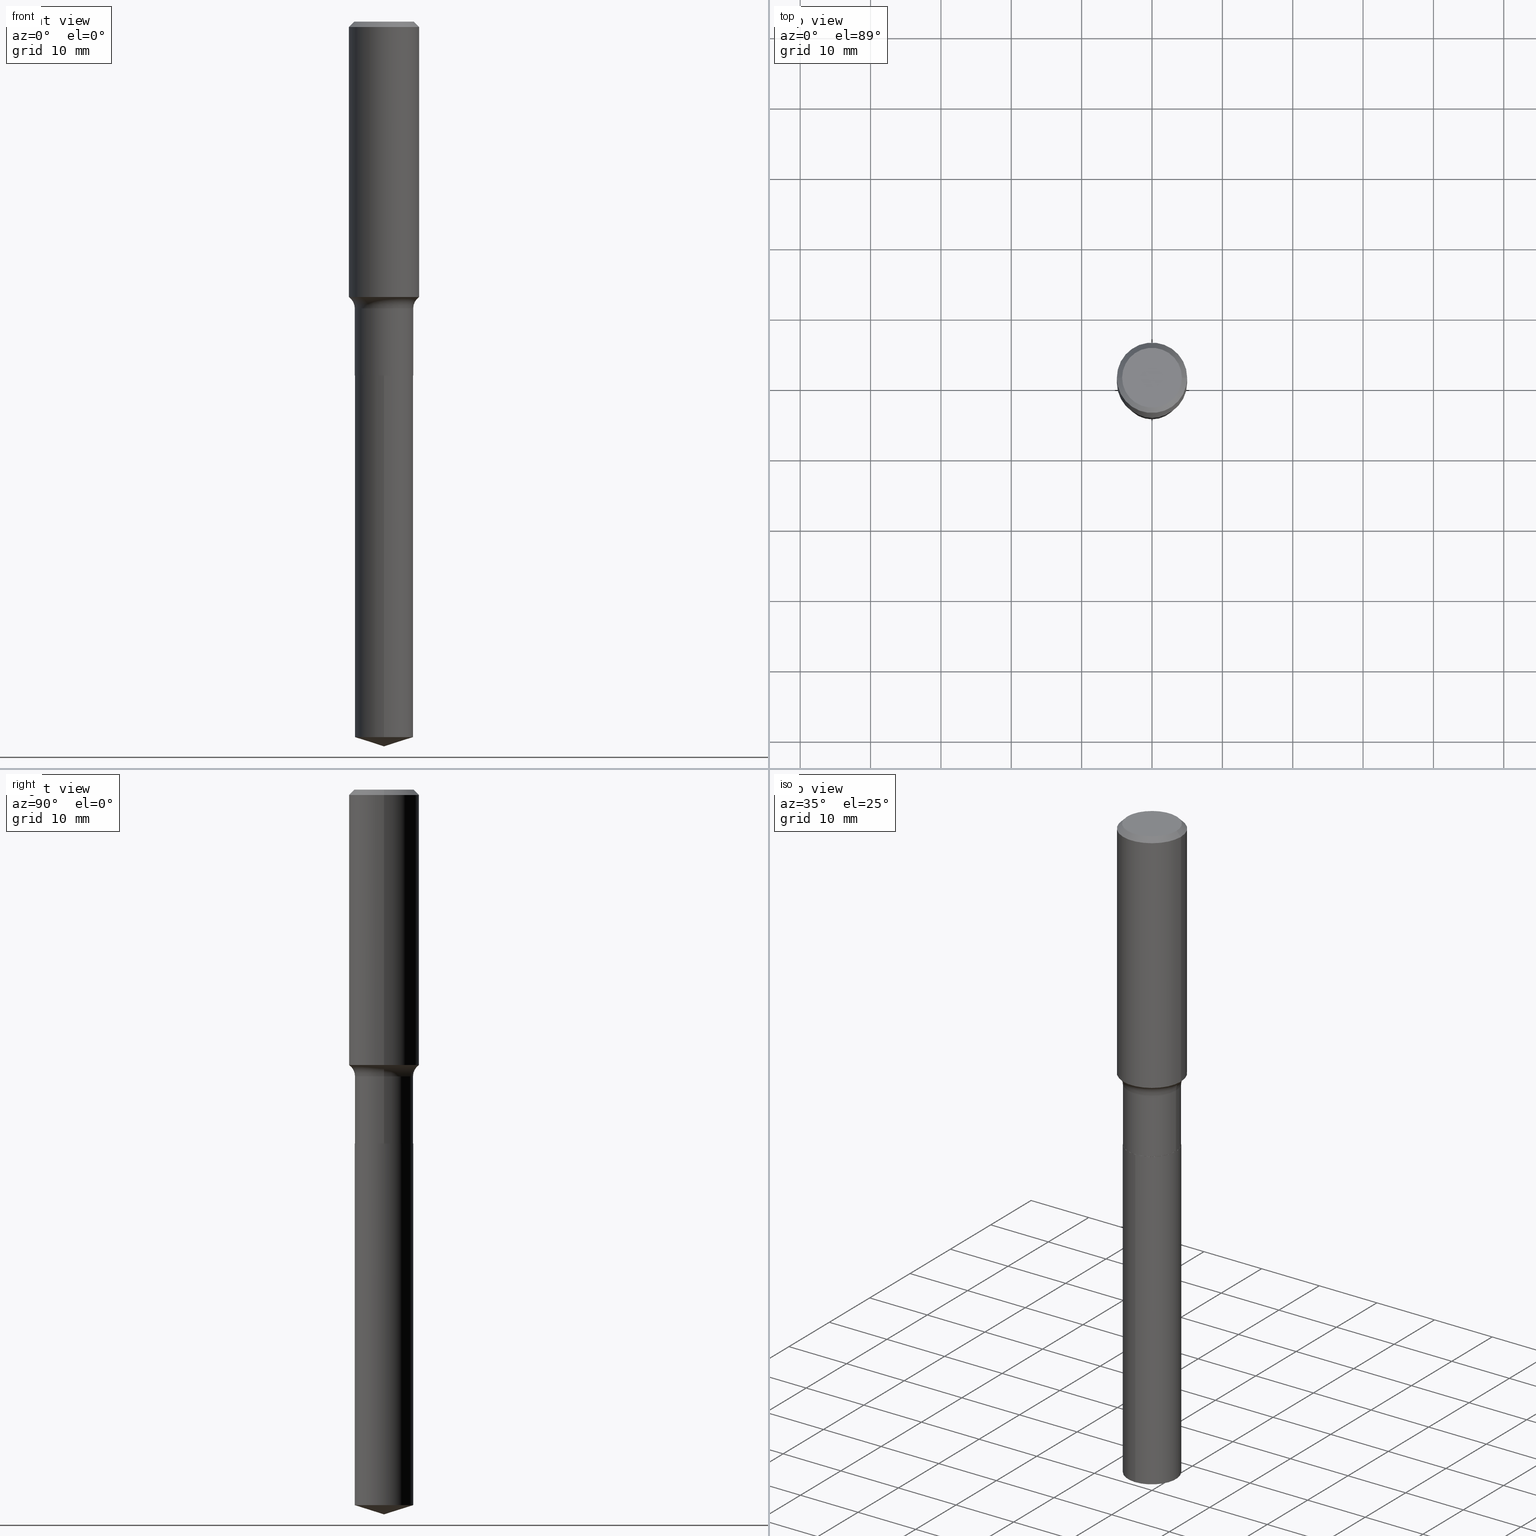
[diagram: canonical four-view strip — front | top / right | iso, engineering-drawing reading convention]
A machine part, canonical four-view strip (front | top / right | iso — engineering-drawing reading convention). The complete STEP part file that produces these views, byte-faithful:
ISO-10303-21;
HEADER;
FILE_DESCRIPTION (( 'STEP AP203' ),
    '1' );
FILE_NAME ('64156.STEP',
    '2024-04-19T15:23:11',
    ( '' ),
    ( '' ),
    'SwSTEP 2.0',
    'SolidWorks 2023',
    '' );
FILE_SCHEMA (( 'CONFIG_CONTROL_DESIGN' ));
ENDSEC;

DATA;
#1 = SHAPE_DEFINITION_REPRESENTATION ( #392, #253 ) ;
#2 = DIRECTION ( 'NONE',  ( -2.445468806185136597E-29, 3.491481338843145583E-15, 1.000000000000000000 ) ) ;
#3 = DIRECTION ( 'NONE',  ( -1.000000000000000000, 7.105427357601001859E-15, 0.000000000000000000 ) ) ;
#4 = COORDINATED_UNIVERSAL_TIME_OFFSET ( 5, 0, .BEHIND. ) ;
#5 = EDGE_CURVE ( 'NONE', #11, #457, #288, .T. ) ;
#6 = CIRCLE ( 'NONE', #150, 0.1634000000000000175 ) ;
#7 =( NAMED_UNIT ( * ) SI_UNIT ( $, .STERADIAN. ) SOLID_ANGLE_UNIT ( ) );
#8 = CALENDAR_DATE ( 2024, 19, 4 ) ;
#9 = CARTESIAN_POINT ( 'NONE',  ( -0.1968500000000000527, -1.342112519284219140E-15, -0.02952750000000022371 ) ) ;
#10 = VERTEX_POINT ( 'NONE', #223 ) ;
#11 = VERTEX_POINT ( 'NONE', #368 ) ;
#12 = CARTESIAN_POINT ( 'NONE',  ( 3.767181709122995344E-29, -5.378537074023262958E-15, -1.540474243464055704 ) ) ;
#13 = VECTOR ( 'NONE', #336, 39.37007874015748143 ) ;
#14 = CONICAL_SURFACE ( 'NONE', #322, 0.1968500000000000527, 0.7853981633974453924 ) ;
#15 = ORIENTED_EDGE ( 'NONE', *, *, #323, .F. ) ;
#16 = ORIENTED_EDGE ( 'NONE', *, *, #124, .T. ) ;
#17 = APPROVAL_PERSON_ORGANIZATION ( #53, #353, #143 ) ;
#18 = CC_DESIGN_PERSON_AND_ORGANIZATION_ASSIGNMENT ( #186, #134, ( #425 ) ) ;
#19 = DIRECTION ( 'NONE',  ( -2.445551837428918341E-29, 3.491362433376205116E-15, 1.000000000000000000 ) ) ;
#20 = ORIENTED_EDGE ( 'NONE', *, *, #450, .T. ) ;
#21 = CALENDAR_DATE ( 2024, 19, 4 ) ;
#22 = CARTESIAN_POINT ( 'NONE',  ( 0.1628999999999999893, -8.051705115506173515E-15, -1.980299999999999949 ) ) ;
#23 = ORIENTED_EDGE ( 'NONE', *, *, #470, .T. ) ;
#24 = CC_DESIGN_DATE_AND_TIME_ASSIGNMENT ( #391, #358, ( #74 ) ) ;
#25 = DIRECTION ( 'NONE',  ( -2.445468806185136597E-29, 3.491481338843145583E-15, 1.000000000000000000 ) ) ;
#26 = AXIS2_PLACEMENT_3D ( 'NONE', #156, #240, #312 ) ;
#27 = DIRECTION ( 'NONE',  ( -2.445551837428918341E-29, 3.491362433376205116E-15, 1.000000000000000000 ) ) ;
#28 = DIRECTION ( 'NONE',  ( 6.776566513254257349E-15, 0.9537169507482289310, 0.3007057995042667353 ) ) ;
#29 = CARTESIAN_POINT ( 'NONE',  ( -0.1968500000000001915, -3.979833698679504381E-15, -1.540474243464055704 ) ) ;
#30 = VECTOR ( 'NONE', #200, 39.37007874015748143 ) ;
#31 = DIRECTION ( 'NONE',  ( -2.445468806185136597E-29, 3.491481338843145583E-15, 1.000000000000000000 ) ) ;
#32 = CARTESIAN_POINT ( 'NONE',  ( 7.220858017463217368E-31, -1.030947152326917719E-16, -0.02952750000000022371 ) ) ;
#33 = DIRECTION ( 'NONE',  ( 1.000000000000000000, -6.982962677686266711E-15, 4.876176775795935793E-29 ) ) ;
#34 = EDGE_CURVE ( 'NONE', #107, #441, #80, .T. ) ;
#35 = MANIFOLD_SOLID_BREP ( 'Body-Move/Copy2[1]', #159 ) ;
#36 = ADVANCED_FACE ( 'NONE', ( #257 ), #400, .T. ) ;
#37 = EDGE_CURVE ( 'NONE', #10, #109, #136, .T. ) ;
#38 = COORDINATED_UNIVERSAL_TIME_OFFSET ( 5, 0, .BEHIND. ) ;
#39 = CARTESIAN_POINT ( 'NONE',  ( 9.916628402413884998E-29, -1.415829474057621466E-14, -4.055100000000000371 ) ) ;
#40 = CARTESIAN_POINT ( 'NONE',  ( 0.000000000000000000, 0.000000000000000000, 0.000000000000000000 ) ) ;
#41 = EDGE_LOOP ( 'NONE', ( #20, #410, #332, #185 ) ) ;
#42 = AXIS2_PLACEMENT_3D ( 'NONE', #488, #152, #242 ) ;
#43 = ORIENTED_EDGE ( 'NONE', *, *, #188, .T. ) ;
#44 = DIRECTION ( 'NONE',  ( -2.445468806185136597E-29, 3.491481338843145583E-15, 1.000000000000000000 ) ) ;
#45 = CYLINDRICAL_SURFACE ( 'NONE', #484, 0.1633999999999999897 ) ;
#46 = CC_DESIGN_APPROVAL ( #345, ( #74 ) ) ;
#47 = EDGE_LOOP ( 'NONE', ( #158, #298, #402, #226 ) ) ;
#48 = DESIGN_CONTEXT ( 'detailed design', #184, 'design' ) ;
#49 = DIRECTION ( 'NONE',  ( 7.105427357601001859E-15, 1.000000000000000000, -3.491481338843145583E-15 ) ) ;
#50 = CALENDAR_DATE ( 2024, 19, 4 ) ;
#51 = ADVANCED_FACE ( 'NONE', ( #75 ), #449, .T. ) ;
#52 = CONICAL_SURFACE ( 'NONE', #417, 0.1628999999999999893, 0.7853981633975849475 ) ;
#53 = PERSON_AND_ORGANIZATION ( #275, #393 ) ;
#54 = ORIENTED_EDGE ( 'NONE', *, *, #470, .F. ) ;
#55 = ORIENTED_EDGE ( 'NONE', *, *, #359, .T. ) ;
#56 = AXIS2_PLACEMENT_3D ( 'NONE', #374, #481, #148 ) ;
#57 = CARTESIAN_POINT ( 'NONE',  ( -8.636477557352738161E-28, 1.232971546403689946E-13, 35.31497874015747840 ) ) ;
#58 = ORIENTED_EDGE ( 'NONE', *, *, #323, .T. ) ;
#59 = ORIENTED_EDGE ( 'NONE', *, *, #390, .T. ) ;
#60 = AXIS2_PLACEMENT_3D ( 'NONE', #464, #405, #430 ) ;
#61 = DIRECTION ( 'NONE',  ( -2.445468806185136597E-29, 3.491481338843145583E-15, 1.000000000000000000 ) ) ;
#62 = ADVANCED_FACE ( 'NONE', ( #380 ), #264, .F. ) ;
#63 = ORIENTED_EDGE ( 'NONE', *, *, #172, .F. ) ;
#64 = VERTEX_POINT ( 'NONE', #29 ) ;
#65 = ORIENTED_EDGE ( 'NONE', *, *, #172, .T. ) ;
#66 = DIRECTION ( 'NONE',  ( 2.445468806185136597E-29, -3.491481338843145583E-15, -1.000000000000000000 ) ) ;
#67 = ORIENTED_EDGE ( 'NONE', *, *, #359, .F. ) ;
#68 = DIRECTION ( 'NONE',  ( 1.000000000000000000, -6.982962677686261977E-15, 0.000000000000000000 ) ) ;
#69 = DIRECTION ( 'NONE',  ( -2.445468806185136597E-29, 3.491481338843145583E-15, 1.000000000000000000 ) ) ;
#70 = CIRCLE ( 'NONE', #115, 0.1968500000000000527 ) ;
#71 = DIMENSIONAL_EXPONENTS ( 1.000000000000000000, 0.000000000000000000, 0.000000000000000000, 0.000000000000000000, 0.000000000000000000, 0.000000000000000000, 0.000000000000000000 ) ;
#72 = DIRECTION ( 'NONE',  ( 1.000000000000000000, -6.982962677686268288E-15, 0.000000000000000000 ) ) ;
#73 = LINE ( 'NONE', #39, #396 ) ;
#74 = SECURITY_CLASSIFICATION ( '', '', #318 ) ;
#75 = FACE_OUTER_BOUND ( 'NONE', #327, .T. ) ;
#76 = DIRECTION ( 'NONE',  ( -2.445468806185136597E-29, 3.491481338843145583E-15, 1.000000000000000000 ) ) ;
#77 = CARTESIAN_POINT ( 'NONE',  ( 9.790798433578370854E-29, -1.397818490061600352E-14, -4.003580177897174686 ) ) ;
#78 = CARTESIAN_POINT ( 'NONE',  ( 0.1968500000000000527, -1.453583746094018101E-15, -0.02952750000000022371 ) ) ;
#79 = CARTESIAN_POINT ( 'NONE',  ( 0.1634000000000000175, -8.053450856175595808E-15, -1.979800000000000004 ) ) ;
#80 = CIRCLE ( 'NONE', #199, 0.1673224999999999851 ) ;
#81 = CARTESIAN_POINT ( 'NONE',  ( 3.923754699524052199E-29, -5.602081808173827411E-15, -1.604500000000000037 ) ) ;
#82 = CYLINDRICAL_SURFACE ( 'NONE', #277, 0.1633999999999999897 ) ;
#83 = CYLINDRICAL_SURFACE ( 'NONE', #423, 0.1633999999999999897 ) ;
#84 = ORIENTED_EDGE ( 'NONE', *, *, #124, .F. ) ;
#85 = LINE ( 'NONE', #125, #297 ) ;
#86 = PERSON_AND_ORGANIZATION_ROLE ( 'classification_officer' ) ;
#87 = EDGE_CURVE ( 'NONE', #364, #457, #6, .T. ) ;
#88 = AXIS2_PLACEMENT_3D ( 'NONE', #440, #434, #68 ) ;
#89 = CARTESIAN_POINT ( 'NONE',  ( -1.141016101533887238E-15, -0.1634000000000069008, -1.980299999999999283 ) ) ;
#90 = EDGE_LOOP ( 'NONE', ( #15, #23, #269, #325 ) ) ;
#91 = EDGE_CURVE ( 'NONE', #183, #103, #70, .T. ) ;
#92 = PERSON_AND_ORGANIZATION ( #275, #393 ) ;
#93 = AXIS2_PLACEMENT_3D ( 'NONE', #12, #461, #428 ) ;
#94 = VECTOR ( 'NONE', #263, 39.37007874015748143 ) ;
#95 = ORIENTED_EDGE ( 'NONE', *, *, #37, .F. ) ;
#96 = EDGE_CURVE ( 'NONE', #313, #10, #73, .T. ) ;
#97 = DIRECTION ( 'NONE',  ( 1.000000000000000000, -6.982962677686267499E-15, 4.876294436782262290E-29 ) ) ;
#98 = VECTOR ( 'NONE', #466, 39.37007874015748143 ) ;
#99 = FACE_OUTER_BOUND ( 'NONE', #90, .T. ) ;
#100 = CARTESIAN_POINT ( 'NONE',  ( 4.842761876888425335E-29, -6.914180495311080769E-15, -1.980299999999999949 ) ) ;
#101 = FACE_OUTER_BOUND ( 'NONE', #307, .T. ) ;
#102 = DIRECTION ( 'NONE',  ( -0.7071067811865454633, 2.468850131082235367E-15, -0.7071067811865495711 ) ) ;
#103 = VERTEX_POINT ( 'NONE', #311 ) ;
#104 = AXIS2_PLACEMENT_3D ( 'NONE', #187, #108, #72 ) ;
#105 = CARTESIAN_POINT ( 'NONE',  ( 4.842761876888425335E-29, -6.914180495311080769E-15, -1.980299999999999949 ) ) ;
#106 = DIRECTION ( 'NONE',  ( -6.982962677686265133E-15, -1.000000000000000000, 3.500519750498698121E-15 ) ) ;
#107 = VERTEX_POINT ( 'NONE', #315 ) ;
#108 = DIRECTION ( 'NONE',  ( -2.445468806185136597E-29, 3.491481338843145583E-15, 1.000000000000000000 ) ) ;
#109 = VERTEX_POINT ( 'NONE', #89 ) ;
#110 = CIRCLE ( 'NONE', #463, 0.1628999999999999893 ) ;
#111 = EDGE_CURVE ( 'NONE', #373, #335, #340, .T. ) ;
#112 = CIRCLE ( 'NONE', #371, 0.1633999999999999897 ) ;
#113 = ORIENTED_EDGE ( 'NONE', *, *, #91, .T. ) ;
#114 = DIRECTION ( 'NONE',  ( -2.438088387897960049E-29, 3.491481338843145188E-15, 1.000000000000000000 ) ) ;
#115 = AXIS2_PLACEMENT_3D ( 'NONE', #490, #2, #343 ) ;
#116 = CARTESIAN_POINT ( 'NONE',  ( 4.842761876888425335E-29, -6.914180495311080769E-15, -1.980299999999999949 ) ) ;
#117 = DIRECTION ( 'NONE',  ( -2.445551837428918341E-29, 3.491362433376205116E-15, 1.000000000000000000 ) ) ;
#118 = LINE ( 'NONE', #236, #30 ) ;
#119 = DIRECTION ( 'NONE',  ( -2.445468806185136597E-29, 3.491481338843145583E-15, 1.000000000000000000 ) ) ;
#120 = AXIS2_PLACEMENT_3D ( 'NONE', #81, #267, #239 ) ;
#121 = CARTESIAN_POINT ( 'NONE',  ( 7.220858017463217368E-31, -1.030947152326917719E-16, -0.02952750000000022371 ) ) ;
#122 = LOCAL_TIME ( 11, 23, 11.00000000000000000, #293 ) ;
#123 = DIRECTION ( 'NONE',  ( -2.445468806185136597E-29, 3.491481338843145583E-15, 1.000000000000000000 ) ) ;
#124 = EDGE_CURVE ( 'NONE', #313, #408, #273, .T. ) ;
#125 = CARTESIAN_POINT ( 'NONE',  ( 0.1628999999999999893, -8.051705115506173515E-15, -1.980299999999999949 ) ) ;
#126 = CARTESIAN_POINT ( 'NONE',  ( -0.1634000000000000175, -5.096231451175739708E-15, -1.979800000000000004 ) ) ;
#127 = ORIENTED_EDGE ( 'NONE', *, *, #196, .T. ) ;
#128 = DATE_AND_TIME ( #50, #409 ) ;
#129 = EDGE_CURVE ( 'NONE', #10, #408, #222, .T. ) ;
#130 = APPLICATION_PROTOCOL_DEFINITION ( 'international standard', 'config_control_design', 1994, #175 ) ;
#131 = ORIENTED_EDGE ( 'NONE', *, *, #350, .F. ) ;
#132 = EDGE_LOOP ( 'NONE', ( #419, #379, #472, #241 ) ) ;
#133 = EDGE_CURVE ( 'NONE', #285, #364, #85, .T. ) ;
#134 = PERSON_AND_ORGANIZATION_ROLE ( 'creator' ) ;
#135 = CARTESIAN_POINT ( 'NONE',  ( 0.1968500000000001915, -6.753133277125806144E-15, -1.540474243464055704 ) ) ;
#136 = LINE ( 'NONE', #167, #271 ) ;
#137 = ORIENTED_EDGE ( 'NONE', *, *, #254, .T. ) ;
#138 = DIRECTION ( 'NONE',  ( 1.000000000000000000, 0.000000000000000000, 0.000000000000000000 ) ) ;
#139 = CARTESIAN_POINT ( 'NONE',  ( 4.841539142485333655E-29, -6.912434754641659266E-15, -1.979800000000000004 ) ) ;
#140 = CIRCLE ( 'NONE', #60, 0.1633999999999999897 ) ;
#141 = DIRECTION ( 'NONE',  ( -1.000000000000000000, 6.982962677686266711E-15, 0.000000000000000000 ) ) ;
#142 = ORIENTED_EDGE ( 'NONE', *, *, #324, .T. ) ;
#143 = APPROVAL_ROLE ( '' ) ;
#144 = FACE_OUTER_BOUND ( 'NONE', #287, .T. ) ;
#145 = APPROVAL_PERSON_ORGANIZATION ( #281, #345, #247 ) ;
#146 = ORIENTED_EDGE ( 'NONE', *, *, #390, .F. ) ;
#147 = AXIS2_PLACEMENT_3D ( 'NONE', #399, #474, #138 ) ;
#148 = DIRECTION ( 'NONE',  ( 6.982962677686265922E-15, 1.000000000000000000, -3.491362433376205116E-15 ) ) ;
#149 = CARTESIAN_POINT ( 'NONE',  ( 1.161026830232051948E-15, 0.1633999999999931063, -1.980300000000000393 ) ) ;
#150 = AXIS2_PLACEMENT_3D ( 'NONE', #235, #31, #383 ) ;
#151 = ADVANCED_FACE ( 'NONE', ( #243 ), #83, .T. ) ;
#152 = DIRECTION ( 'NONE',  ( -2.445551837428918341E-29, 3.491362433376205116E-15, 1.000000000000000000 ) ) ;
#153 = ADVANCED_FACE ( 'NONE', ( #389 ), #45, .T. ) ;
#154 = CC_DESIGN_PERSON_AND_ORGANIZATION_ASSIGNMENT ( #462, #215, ( #169 ) ) ;
#155 = CIRCLE ( 'NONE', #319, 0.07799999999999995826 ) ;
#156 = CARTESIAN_POINT ( 'NONE',  ( -8.636477557352738161E-28, 1.232971546403689946E-13, 35.31497874015747840 ) ) ;
#157 = CARTESIAN_POINT ( 'NONE',  ( 9.916960139615408535E-29, -1.415782380358385216E-14, -4.055100000000000371 ) ) ;
#158 = ORIENTED_EDGE ( 'NONE', *, *, #87, .T. ) ;
#159 = CLOSED_SHELL ( 'NONE', ( #151, #437, #370, #36, #301 ) ) ;
#160 = ADVANCED_FACE ( 'NONE', ( #377 ), #52, .T. ) ;
#161 = EDGE_CURVE ( 'NONE', #457, #373, #118, .T. ) ;
#162 = DIRECTION ( 'NONE',  ( -2.445551837428918341E-29, 3.491362433376205116E-15, 1.000000000000000000 ) ) ;
#163 =( LENGTH_UNIT ( ) NAMED_UNIT ( * ) SI_UNIT ( $, .METRE. ) );
#164 = AXIS2_PLACEMENT_3D ( 'NONE', #121, #347, #276 ) ;
#165 = ORIENTED_EDGE ( 'NONE', *, *, #111, .F. ) ;
#166 = PERSON_AND_ORGANIZATION ( #275, #393 ) ;
#167 = CARTESIAN_POINT ( 'NONE',  ( -1.141016101533887238E-15, -0.1634000000000069008, -1.980299999999999283 ) ) ;
#168 = APPROVAL ( #454, 'UNSPECIFIED' ) ;
#169 = PRODUCT ( '64156', '64156', '', ( #397 ) ) ;
#170 = CONICAL_SURFACE ( 'NONE', #26, 124.8659371009152892, 1.265363707695892126 ) ;
#171 = ORIENTED_EDGE ( 'NONE', *, *, #270, .F. ) ;
#172 = EDGE_CURVE ( 'NONE', #109, #438, #333, .T. ) ;
#173 = TOROIDAL_SURFACE ( 'NONE', #349, 0.2413999999999999202, 0.07799999999999995826 ) ;
#174 = EDGE_LOOP ( 'NONE', ( #300, #59, #258, #362 ) ) ;
#175 = APPLICATION_CONTEXT ( 'configuration controlled 3d designs of mechanical parts and assemblies' ) ;
#176 = CC_DESIGN_PERSON_AND_ORGANIZATION_ASSIGNMENT ( #217, #460, ( #317 ) ) ;
#177 = APPLICATION_PROTOCOL_DEFINITION ( 'international standard', 'config_control_design', 1994, #184 ) ;
#178 = ORIENTED_EDGE ( 'NONE', *, *, #385, .T. ) ;
#179 = FACE_OUTER_BOUND ( 'NONE', #180, .T. ) ;
#180 = EDGE_LOOP ( 'NONE', ( #357, #16, #411 ) ) ;
#181 = EDGE_CURVE ( 'NONE', #103, #183, #326, .T. ) ;
#182 = AXIS2_PLACEMENT_3D ( 'NONE', #57, #19, #106 ) ;
#183 = VERTEX_POINT ( 'NONE', #9 ) ;
#184 = APPLICATION_CONTEXT ( 'configuration controlled 3d designs of mechanical parts and assemblies' ) ;
#185 = ORIENTED_EDGE ( 'NONE', *, *, #133, .F. ) ;
#186 = PERSON_AND_ORGANIZATION ( #275, #393 ) ;
#187 = CARTESIAN_POINT ( 'NONE',  ( 3.923754699524052199E-29, -5.602081808173827411E-15, -1.604500000000000037 ) ) ;
#188 = EDGE_CURVE ( 'NONE', #107, #183, #467, .T. ) ;
#189 = ORIENTED_EDGE ( 'NONE', *, *, #161, .F. ) ;
#190 = DATE_AND_TIME ( #21, #197 ) ;
#191 = LINE ( 'NONE', #261, #378 ) ;
#192 = CARTESIAN_POINT ( 'NONE',  ( 0.1633999999999999897, -1.141016101533935951E-15, 7.967672851650558929E-30 ) ) ;
#193 = CC_DESIGN_APPROVAL ( #168, ( #317 ) ) ;
#194 = DIRECTION ( 'NONE',  ( 1.000000000000000000, -6.982962677686265133E-15, 4.883557194083111780E-29 ) ) ;
#195 = AXIS2_PLACEMENT_3D ( 'NONE', #238, #69, #231 ) ;
#196 = EDGE_CURVE ( 'NONE', #408, #10, #140, .T. ) ;
#197 = LOCAL_TIME ( 11, 23, 11.00000000000000000, #237 ) ;
#198 = ADVANCED_FACE ( 'NONE', ( #99 ), #173, .F. ) ;
#199 = AXIS2_PLACEMENT_3D ( 'NONE', #431, #427, #97 ) ;
#200 = DIRECTION ( 'NONE',  ( -2.445468806185136877E-29, 3.491481338843145188E-15, 1.000000000000000000 ) ) ;
#201 = DIRECTION ( 'NONE',  ( 1.000000000000000000, -6.982962677686267499E-15, 4.876294436782262290E-29 ) ) ;
#202 = FACE_OUTER_BOUND ( 'NONE', #292, .T. ) ;
#203 = EDGE_LOOP ( 'NONE', ( #260, #444, #63, #95 ) ) ;
#204 = DIRECTION ( 'NONE',  ( -6.982962677686265922E-15, -1.000000000000000000, 3.343755194203504699E-15 ) ) ;
#205 = DIRECTION ( 'NONE',  ( -2.445551837428918341E-29, 3.491362433376205116E-15, 1.000000000000000000 ) ) ;
#206 = CARTESIAN_POINT ( 'NONE',  ( 0.1673224999999999851, -1.300749711163072594E-15, 4.096137381456741925E-18 ) ) ;
#207 = APPROVAL_DATE_TIME ( #284, #168 ) ;
#208 = DIRECTION ( 'NONE',  ( -6.659769872151632089E-15, -0.9537169507482267106, 0.3007057995042733411 ) ) ;
#209 = DIRECTION ( 'NONE',  ( 2.438088387897960049E-29, -3.491481338843145188E-15, -1.000000000000000000 ) ) ;
#210 = VECTOR ( 'NONE', #28, 39.37007874015748143 ) ;
#211 = ORIENTED_EDGE ( 'NONE', *, *, #34, .T. ) ;
#212 = CARTESIAN_POINT ( 'NONE',  ( 4.842761876888425335E-29, -6.914180495311080769E-15, -1.980299999999999949 ) ) ;
#213 = PERSON_AND_ORGANIZATION_ROLE ( 'design_supplier' ) ;
#214 = VERTEX_POINT ( 'NONE', #135 ) ;
#215 = PERSON_AND_ORGANIZATION_ROLE ( 'design_owner' ) ;
#216 = AXIS2_PLACEMENT_3D ( 'NONE', #100, #329, #471 ) ;
#217 = PERSON_AND_ORGANIZATION ( #275, #393 ) ;
#218 = MANIFOLD_SOLID_BREP ( 'Body-Move/Copy2[2]', #310 ) ;
#219 = AXIS2_PLACEMENT_3D ( 'NONE', #448, #119, #338 ) ;
#220 = CARTESIAN_POINT ( 'NONE',  ( 0.1968500000000001082, -1.374596203102542397E-15, 9.598753983154305062E-30 ) ) ;
#221 = ORIENTED_EDGE ( 'NONE', *, *, #232, .T. ) ;
#222 = CIRCLE ( 'NONE', #256, 0.1633999999999999897 ) ;
#223 = CARTESIAN_POINT ( 'NONE',  ( -1.141016101533837737E-15, -0.1634000000000139230, -4.003580177897174686 ) ) ;
#224 = ADVANCED_FACE ( 'NONE', ( #101 ), #14, .T. ) ;
#225 = ORIENTED_EDGE ( 'NONE', *, *, #96, .T. ) ;
#226 = ORIENTED_EDGE ( 'NONE', *, *, #324, .F. ) ;
#227 = LINE ( 'NONE', #149, #435 ) ;
#228 = PLANE ( 'NONE',  #56 ) ;
#229 = LINE ( 'NONE', #192, #13 ) ;
#230 = DIRECTION ( 'NONE',  ( -2.445551837428918341E-29, 3.491362433376205116E-15, 1.000000000000000000 ) ) ;
#231 = DIRECTION ( 'NONE',  ( 1.000000000000000000, -6.982962677686266711E-15, 0.000000000000000000 ) ) ;
#232 = EDGE_CURVE ( 'NONE', #214, #335, #283, .T. ) ;
#233 = AXIS2_PLACEMENT_3D ( 'NONE', #139, #76, #296 ) ;
#234 = DIRECTION ( 'NONE',  ( -2.445468806185136597E-29, 3.491481338843145583E-15, 1.000000000000000000 ) ) ;
#235 = CARTESIAN_POINT ( 'NONE',  ( 4.841539142485333655E-29, -6.912434754641659266E-15, -1.979800000000000004 ) ) ;
#236 = CARTESIAN_POINT ( 'NONE',  ( -0.1633999999999999897, 1.161026830232003631E-15, -8.037539937476515647E-30 ) ) ;
#237 = COORDINATED_UNIVERSAL_TIME_OFFSET ( 5, 0, .BEHIND. ) ;
#238 = CARTESIAN_POINT ( 'NONE',  ( 3.767181709122995344E-29, -5.378537074023262958E-15, -1.540474243464055704 ) ) ;
#239 = DIRECTION ( 'NONE',  ( 1.000000000000000000, -6.982962677686265133E-15, 4.883557194083111780E-29 ) ) ;
#240 = DIRECTION ( 'NONE',  ( -2.445551837428918341E-29, 3.491362433376205116E-15, 1.000000000000000000 ) ) ;
#241 = ORIENTED_EDGE ( 'NONE', *, *, #412, .F. ) ;
#242 = DIRECTION ( 'NONE',  ( -6.982962677686265922E-15, -1.000000000000000000, 3.343755194203504699E-15 ) ) ;
#243 = FACE_OUTER_BOUND ( 'NONE', #203, .T. ) ;
#244 = ORIENTED_EDGE ( 'NONE', *, *, #37, .T. ) ;
#245 = DIRECTION ( 'NONE',  ( 1.000000000000000000, -6.982962677686266711E-15, 4.876176775795935793E-29 ) ) ;
#246 = ADVANCED_FACE ( 'NONE', ( #413 ), #439, .F. ) ;
#247 = APPROVAL_ROLE ( '' ) ;
#248 = CARTESIAN_POINT ( 'NONE',  ( 4.842761876888425335E-29, -6.914180495311080769E-15, -1.980299999999999949 ) ) ;
#249 = DIRECTION ( 'NONE',  ( -6.982962677686265922E-15, -1.000000000000000000, 3.343755194203504699E-15 ) ) ;
#250 = AXIS2_PLACEMENT_3D ( 'NONE', #453, #123, #492 ) ;
#251 = CALENDAR_DATE ( 2024, 19, 4 ) ;
#252 = LOCAL_TIME ( 11, 23, 11.00000000000000000, #316 ) ;
#253 = ADVANCED_BREP_SHAPE_REPRESENTATION ( '64156', ( #35, #218, #147 ), #443 ) ;
#254 = EDGE_CURVE ( 'NONE', #335, #373, #458, .T. ) ;
#255 = DIRECTION ( 'NONE',  ( 1.000000000000000000, -6.982962677686266711E-15, 0.000000000000000000 ) ) ;
#256 = AXIS2_PLACEMENT_3D ( 'NONE', #77, #162, #204 ) ;
#257 = FACE_OUTER_BOUND ( 'NONE', #352, .T. ) ;
#258 = ORIENTED_EDGE ( 'NONE', *, *, #133, .T. ) ;
#259 = ORIENTED_EDGE ( 'NONE', *, *, #181, .T. ) ;
#260 = ORIENTED_EDGE ( 'NONE', *, *, #129, .T. ) ;
#261 = CARTESIAN_POINT ( 'NONE',  ( -0.1968500000000001082, 1.398703375343757985E-15, -9.682923725166787881E-30 ) ) ;
#262 = ORIENTED_EDGE ( 'NONE', *, *, #308, .T. ) ;
#263 = DIRECTION ( 'NONE',  ( 0.7071067811865454633, -7.319954787623248157E-15, -0.7071067811865495711 ) ) ;
#264 = TOROIDAL_SURFACE ( 'NONE', #120, 0.2413999999999999202, 0.07799999999999995826 ) ;
#265 = DIRECTION ( 'NONE',  ( -2.445468806185136597E-29, 3.491481338843145583E-15, 1.000000000000000000 ) ) ;
#266 = EDGE_CURVE ( 'NONE', #64, #183, #191, .T. ) ;
#267 = DIRECTION ( 'NONE',  ( -2.445468806185136597E-29, 3.491481338843145583E-15, 1.000000000000000000 ) ) ;
#268 = FACE_OUTER_BOUND ( 'NONE', #478, .T. ) ;
#269 = ORIENTED_EDGE ( 'NONE', *, *, #111, .T. ) ;
#270 = EDGE_CURVE ( 'NONE', #408, #438, #227, .T. ) ;
#271 = VECTOR ( 'NONE', #205, 39.37007874015748143 ) ;
#272 = CARTESIAN_POINT ( 'NONE',  ( 4.842761876888425335E-29, -6.914180495311080769E-15, -1.980299999999999949 ) ) ;
#273 = LINE ( 'NONE', #157, #210 ) ;
#274 = CARTESIAN_POINT ( 'NONE',  ( 1.161026830232101646E-15, 0.1633999999999931063, -1.980300000000000393 ) ) ;
#275 = PERSON ( 'UNSPECIFIED', 'UNSPECIFIED', 'UNSPECIFIED', ('UNSPECIFIED'), ('UNSPECIFIED'), ('UNSPECIFIED') ) ;
#276 = DIRECTION ( 'NONE',  ( -1.000000000000000000, 6.982962677686266711E-15, 0.000000000000000000 ) ) ;
#277 = AXIS2_PLACEMENT_3D ( 'NONE', #40, #265, #33 ) ;
#278 = CARTESIAN_POINT ( 'NONE',  ( -1.001697619218021790E-46, 1.430158722866389718E-32, 4.096137381448108366E-18 ) ) ;
#279 = DIRECTION ( 'NONE',  ( 0.7071067811866441621, -2.468850131083269169E-15, 0.7071067811864508723 ) ) ;
#280 = CARTESIAN_POINT ( 'NONE',  ( 0.000000000000000000, 0.000000000000000000, 0.000000000000000000 ) ) ;
#281 = PERSON_AND_ORGANIZATION ( #275, #393 ) ;
#282 = DIRECTION ( 'NONE',  ( -1.000000000000000000, 6.982962677686265922E-15, -4.876176775795935793E-29 ) ) ;
#283 = CIRCLE ( 'NONE', #88, 0.07799999999999995826 ) ;
#284 = DATE_AND_TIME ( #251, #354 ) ;
#285 = VERTEX_POINT ( 'NONE', #22 ) ;
#286 = CC_DESIGN_SECURITY_CLASSIFICATION ( #74, ( #317 ) ) ;
#287 = EDGE_LOOP ( 'NONE', ( #65, #55 ) ) ;
#288 = LINE ( 'NONE', #465, #360 ) ;
#289 = APPROVAL_STATUS ( 'not_yet_approved' ) ;
#290 = APPROVAL_PERSON_ORGANIZATION ( #166, #168, #351 ) ;
#291 = DIRECTION ( 'NONE',  ( -0.7071067811866441621, 7.493145998870704414E-15, 0.7071067811864508723 ) ) ;
#292 = EDGE_LOOP ( 'NONE', ( #469, #422, #43, #113 ) ) ;
#293 = COORDINATED_UNIVERSAL_TIME_OFFSET ( 5, 0, .BEHIND. ) ;
#294 = CARTESIAN_POINT ( 'NONE',  ( 3.923754699524052199E-29, -5.602081808173827411E-15, -1.604500000000000037 ) ) ;
#295 = ORIENTED_EDGE ( 'NONE', *, *, #415, .T. ) ;
#296 = DIRECTION ( 'NONE',  ( 1.000000000000000000, -6.982962677686265922E-15, 0.000000000000000000 ) ) ;
#297 = VECTOR ( 'NONE', #279, 39.37007874015748143 ) ;
#298 = ORIENTED_EDGE ( 'NONE', *, *, #161, .T. ) ;
#299 = DATE_AND_TIME ( #404, #122 ) ;
#300 = ORIENTED_EDGE ( 'NONE', *, *, #5, .F. ) ;
#301 = ADVANCED_FACE ( 'NONE', ( #144 ), #228, .F. ) ;
#302 = CYLINDRICAL_SURFACE ( 'NONE', #485, 0.1968500000000001082 ) ;
#303 = PLANE ( 'NONE',  #306 ) ;
#304 = DIRECTION ( 'NONE',  ( -6.982962677686265922E-15, -1.000000000000000000, 3.343755194203504699E-15 ) ) ;
#305 = DIRECTION ( 'NONE',  ( -2.445468806185136597E-29, 3.491481338843145583E-15, 1.000000000000000000 ) ) ;
#306 = AXIS2_PLACEMENT_3D ( 'NONE', #344, #209, #282 ) ;
#307 = EDGE_LOOP ( 'NONE', ( #320, #262, #259, #456 ) ) ;
#308 = EDGE_CURVE ( 'NONE', #441, #103, #395, .T. ) ;
#309 = CC_DESIGN_PERSON_AND_ORGANIZATION_ASSIGNMENT ( #92, #86, ( #74 ) ) ;
#310 = CLOSED_SHELL ( 'NONE', ( #429, #224, #330, #198, #153, #394, #62, #51, #407, #421, #246, #160 ) ) ;
#311 = CARTESIAN_POINT ( 'NONE',  ( 0.1968500000000000527, -1.477690918335233688E-15, -0.02952750000000022371 ) ) ;
#312 = DIRECTION ( 'NONE',  ( -6.982962677686265133E-15, -1.000000000000000000, 3.500519750498698121E-15 ) ) ;
#313 = VERTEX_POINT ( 'NONE', #487 ) ;
#314 = DIRECTION ( 'NONE',  ( 1.000000000000000000, -6.982962677686266711E-15, 4.876176775795935793E-29 ) ) ;
#315 = CARTESIAN_POINT ( 'NONE',  ( -0.1673224999999999851, 1.219954130253505460E-15, 4.096137381439757534E-18 ) ) ;
#316 = COORDINATED_UNIVERSAL_TIME_OFFSET ( 5, 0, .BEHIND. ) ;
#317 = PRODUCT_DEFINITION_FORMATION_WITH_SPECIFIED_SOURCE ( 'ANY', '', #169, .NOT_KNOWN. ) ;
#318 = SECURITY_CLASSIFICATION_LEVEL ( 'unclassified' ) ;
#319 = AXIS2_PLACEMENT_3D ( 'NONE', #445, #49, #3 ) ;
#320 = ORIENTED_EDGE ( 'NONE', *, *, #385, .F. ) ;
#321 = UNCERTAINTY_MEASURE_WITH_UNIT (LENGTH_MEASURE( 1.000000000000000082E-05 ), #486, 'distance_accuracy_value', 'NONE');
#322 = AXIS2_PLACEMENT_3D ( 'NONE', #473, #66, #141 ) ;
#323 = EDGE_CURVE ( 'NONE', #64, #214, #426, .T. ) ;
#324 = EDGE_CURVE ( 'NONE', #364, #335, #229, .T. ) ;
#325 = ORIENTED_EDGE ( 'NONE', *, *, #232, .F. ) ;
#326 = CIRCLE ( 'NONE', #477, 0.1968500000000000527 ) ;
#327 = EDGE_LOOP ( 'NONE', ( #355, #58, #479, #406 ) ) ;
#328 = CC_DESIGN_APPROVAL ( #353, ( #425 ) ) ;
#329 = DIRECTION ( 'NONE',  ( -2.445551837428918341E-29, 3.491362433376205116E-15, 1.000000000000000000 ) ) ;
#330 = ADVANCED_FACE ( 'NONE', ( #482 ), #302, .T. ) ;
#331 = CONICAL_SURFACE ( 'NONE', #182, 124.8659371009152892, 1.265363707695892126 ) ;
#332 = ORIENTED_EDGE ( 'NONE', *, *, #87, .F. ) ;
#333 = CIRCLE ( 'NONE', #42, 0.1633999999999999897 ) ;
#334 = DIRECTION ( 'NONE',  ( 1.000000000000000000, -6.982962677686269077E-15, 0.000000000000000000 ) ) ;
#335 = VERTEX_POINT ( 'NONE', #424 ) ;
#336 = DIRECTION ( 'NONE',  ( -2.445468806185136877E-29, 3.491481338843145188E-15, 1.000000000000000000 ) ) ;
#337 = DIRECTION ( 'NONE',  ( -2.445468806185136877E-29, 3.491481338843145188E-15, 1.000000000000000000 ) ) ;
#338 = DIRECTION ( 'NONE',  ( 1.000000000000000000, -6.982962677686269077E-15, 0.000000000000000000 ) ) ;
#339 = DIRECTION ( 'NONE',  ( 1.000000000000000000, -6.982962677686269077E-15, 0.000000000000000000 ) ) ;
#340 = CIRCLE ( 'NONE', #250, 0.1633999999999999619 ) ;
#341 = LENGTH_MEASURE_WITH_UNIT ( LENGTH_MEASURE( 0.02539999999999999897 ), #163 );
#342 = DIRECTION ( 'NONE',  ( -2.445468806185136597E-29, 3.491481338843145583E-15, 1.000000000000000000 ) ) ;
#343 = DIRECTION ( 'NONE',  ( 1.000000000000000000, -6.982962677686266711E-15, 0.000000000000000000 ) ) ;
#344 = CARTESIAN_POINT ( 'NONE',  ( -5.008488096090108951E-47, 7.150793614331948590E-33, 2.048068690724054183E-18 ) ) ;
#345 = APPROVAL ( #361, 'UNSPECIFIED' ) ;
#346 = CONICAL_SURFACE ( 'NONE', #363, 0.1628999999999999893, 0.7853981633975849475 ) ;
#347 = DIRECTION ( 'NONE',  ( 2.445468806185136597E-29, -3.491481338843145583E-15, -1.000000000000000000 ) ) ;
#348 = PERSON_AND_ORGANIZATION ( #275, #393 ) ;
#349 = AXIS2_PLACEMENT_3D ( 'NONE', #294, #61, #194 ) ;
#350 = EDGE_CURVE ( 'NONE', #214, #64, #459, .T. ) ;
#351 = APPROVAL_ROLE ( '' ) ;
#352 = EDGE_LOOP ( 'NONE', ( #171, #127, #244, #67 ) ) ;
#353 = APPROVAL ( #289, 'UNSPECIFIED' ) ;
#354 = LOCAL_TIME ( 11, 23, 11.00000000000000000, #4 ) ;
#355 = ORIENTED_EDGE ( 'NONE', *, *, #266, .F. ) ;
#356 = DIRECTION ( 'NONE',  ( -2.445468806185136597E-29, 3.491481338843145583E-15, 1.000000000000000000 ) ) ;
#357 = ORIENTED_EDGE ( 'NONE', *, *, #96, .F. ) ;
#358 = DATE_TIME_ROLE ( 'classification_date' ) ;
#359 = EDGE_CURVE ( 'NONE', #438, #109, #112, .T. ) ;
#360 = VECTOR ( 'NONE', #291, 39.37007874015748143 ) ;
#361 = APPROVAL_STATUS ( 'not_yet_approved' ) ;
#362 = ORIENTED_EDGE ( 'NONE', *, *, #415, .F. ) ;
#363 = AXIS2_PLACEMENT_3D ( 'NONE', #248, #305, #334 ) ;
#364 = VERTEX_POINT ( 'NONE', #79 ) ;
#365 = AXIS2_PLACEMENT_3D ( 'NONE', #105, #114, #476 ) ;
#366 = EDGE_LOOP ( 'NONE', ( #54, #131, #221, #137 ) ) ;
#367 = PRODUCT_RELATED_PRODUCT_CATEGORY ( 'detail', '', ( #169 ) ) ;
#368 = CARTESIAN_POINT ( 'NONE',  ( -0.1628999999999999893, -5.754057151583766836E-15, -1.980299999999999949 ) ) ;
#369 = ORIENTED_EDGE ( 'NONE', *, *, #196, .F. ) ;
#370 = ADVANCED_FACE ( 'NONE', ( #268 ), #170, .T. ) ;
#371 = AXIS2_PLACEMENT_3D ( 'NONE', #272, #27, #304 ) ;
#372 = AXIS2_PLACEMENT_3D ( 'NONE', #278, #44, #201 ) ;
#373 = VERTEX_POINT ( 'NONE', #483 ) ;
#374 = CARTESIAN_POINT ( 'NONE',  ( 4.842761876888425335E-29, -6.914180495311080769E-15, -1.980299999999999949 ) ) ;
#375 = CARTESIAN_POINT ( 'NONE',  ( 0.000000000000000000, 0.000000000000000000, 0.000000000000000000 ) ) ;
#376 = CONICAL_SURFACE ( 'NONE', #164, 0.1968500000000000527, 0.7853981633974453924 ) ;
#377 = FACE_OUTER_BOUND ( 'NONE', #174, .T. ) ;
#378 = VECTOR ( 'NONE', #337, 39.37007874015748143 ) ;
#379 = ORIENTED_EDGE ( 'NONE', *, *, #266, .T. ) ;
#380 = FACE_OUTER_BOUND ( 'NONE', #366, .T. ) ;
#381 = CARTESIAN_POINT ( 'NONE',  ( 4.842761876888425335E-29, -6.914180495311080769E-15, -1.980299999999999949 ) ) ;
#382 = APPROVAL_DATE_TIME ( #128, #345 ) ;
#383 = DIRECTION ( 'NONE',  ( 1.000000000000000000, -6.982962677686265922E-15, 0.000000000000000000 ) ) ;
#384 = ORIENTED_EDGE ( 'NONE', *, *, #450, .F. ) ;
#385 = EDGE_CURVE ( 'NONE', #441, #107, #455, .T. ) ;
#386 = VECTOR ( 'NONE', #102, 39.37007874015748143 ) ;
#387 = DIRECTION ( 'NONE',  ( 1.000000000000000000, -6.982962677686266711E-15, 4.876176775795935793E-29 ) ) ;
#388 = DATE_TIME_ROLE ( 'creation_date' ) ;
#389 = FACE_OUTER_BOUND ( 'NONE', #47, .T. ) ;
#390 = EDGE_CURVE ( 'NONE', #11, #285, #480, .T. ) ;
#391 = DATE_AND_TIME ( #8, #252 ) ;
#392 = PRODUCT_DEFINITION_SHAPE ( 'NONE', 'NONE',  #425 ) ;
#393 = ORGANIZATION ( 'UNSPECIFIED', 'UNSPECIFIED', '' ) ;
#394 = ADVANCED_FACE ( 'NONE', ( #446 ), #82, .T. ) ;
#395 = LINE ( 'NONE', #78, #94 ) ;
#396 = VECTOR ( 'NONE', #208, 39.37007874015748854 ) ;
#397 = MECHANICAL_CONTEXT ( 'NONE', #175, 'mechanical' ) ;
#398 = EDGE_LOOP ( 'NONE', ( #384, #146 ) ) ;
#399 = CARTESIAN_POINT ( 'NONE',  ( 0.000000000000000000, 0.000000000000000000, 0.000000000000000000 ) ) ;
#400 = CYLINDRICAL_SURFACE ( 'NONE', #216, 0.1633999999999999897 ) ;
#401 = CARTESIAN_POINT ( 'NONE',  ( -0.1968500000000000527, 1.271501487869850317E-15, -0.02952750000000022371 ) ) ;
#402 = ORIENTED_EDGE ( 'NONE', *, *, #254, .F. ) ;
#403 = AXIS2_PLACEMENT_3D ( 'NONE', #280, #420, #245 ) ;
#404 = CALENDAR_DATE ( 2024, 19, 4 ) ;
#405 = DIRECTION ( 'NONE',  ( -2.445551837428918341E-29, 3.491362433376205116E-15, 1.000000000000000000 ) ) ;
#406 = ORIENTED_EDGE ( 'NONE', *, *, #91, .F. ) ;
#407 = ADVANCED_FACE ( 'NONE', ( #202 ), #376, .T. ) ;
#408 = VERTEX_POINT ( 'NONE', #418 ) ;
#409 = LOCAL_TIME ( 11, 23, 11.00000000000000000, #38 ) ;
#410 = ORIENTED_EDGE ( 'NONE', *, *, #5, .T. ) ;
#411 = ORIENTED_EDGE ( 'NONE', *, *, #129, .F. ) ;
#412 = EDGE_CURVE ( 'NONE', #214, #103, #475, .T. ) ;
#413 = FACE_OUTER_BOUND ( 'NONE', #398, .T. ) ;
#414 = CARTESIAN_POINT ( 'NONE',  ( 0.000000000000000000, 0.000000000000000000, 0.000000000000000000 ) ) ;
#415 = EDGE_CURVE ( 'NONE', #457, #364, #433, .T. ) ;
#416 =( NAMED_UNIT ( * ) PLANE_ANGLE_UNIT ( ) SI_UNIT ( $, .RADIAN. ) );
#417 = AXIS2_PLACEMENT_3D ( 'NONE', #212, #356, #447 ) ;
#418 = CARTESIAN_POINT ( 'NONE',  ( 1.161026830232101449E-15, 0.1633999999999860009, -4.003580177897175574 ) ) ;
#419 = ORIENTED_EDGE ( 'NONE', *, *, #350, .T. ) ;
#420 = DIRECTION ( 'NONE',  ( -2.445468806185136597E-29, 3.491481338843145583E-15, 1.000000000000000000 ) ) ;
#421 = ADVANCED_FACE ( 'NONE', ( #436 ), #303, .F. ) ;
#422 = ORIENTED_EDGE ( 'NONE', *, *, #34, .F. ) ;
#423 = AXIS2_PLACEMENT_3D ( 'NONE', #381, #117, #249 ) ;
#424 = CARTESIAN_POINT ( 'NONE',  ( 0.1633999999999999619, -6.743097909707763164E-15, -1.604500000000000037 ) ) ;
#425 = PRODUCT_DEFINITION ( 'UNKNOWN', '', #317, #48 ) ;
#426 = CIRCLE ( 'NONE', #195, 0.1968500000000001915 ) ;
#427 = DIRECTION ( 'NONE',  ( -2.445468806185136597E-29, 3.491481338843145583E-15, 1.000000000000000000 ) ) ;
#428 = DIRECTION ( 'NONE',  ( 1.000000000000000000, -6.982962677686266711E-15, 0.000000000000000000 ) ) ;
#429 = ADVANCED_FACE ( 'NONE', ( #491 ), #346, .T. ) ;
#430 = DIRECTION ( 'NONE',  ( -6.982962677686265922E-15, -1.000000000000000000, 3.343755194203504699E-15 ) ) ;
#431 = CARTESIAN_POINT ( 'NONE',  ( -1.001697619218021790E-46, 1.430158722866389718E-32, 4.096137381448108366E-18 ) ) ;
#432 = EDGE_LOOP ( 'NONE', ( #189, #295, #142, #165 ) ) ;
#433 = CIRCLE ( 'NONE', #233, 0.1634000000000000175 ) ;
#434 = DIRECTION ( 'NONE',  ( -6.982962677686266711E-15, -1.000000000000000000, 3.491481338843145583E-15 ) ) ;
#435 = VECTOR ( 'NONE', #230, 39.37007874015748143 ) ;
#436 = FACE_OUTER_BOUND ( 'NONE', #468, .T. ) ;
#437 = ADVANCED_FACE ( 'NONE', ( #179 ), #331, .T. ) ;
#438 = VERTEX_POINT ( 'NONE', #274 ) ;
#439 = PLANE ( 'NONE',  #365 ) ;
#440 = CARTESIAN_POINT ( 'NONE',  ( 0.2413999999999999202, -7.287768998567291999E-15, -1.604500000000000037 ) ) ;
#441 = VERTEX_POINT ( 'NONE', #206 ) ;
#442 = CC_DESIGN_PERSON_AND_ORGANIZATION_ASSIGNMENT ( #348, #213, ( #317 ) ) ;
#443 =( GEOMETRIC_REPRESENTATION_CONTEXT ( 3 ) GLOBAL_UNCERTAINTY_ASSIGNED_CONTEXT ( ( #321 ) ) GLOBAL_UNIT_ASSIGNED_CONTEXT ( ( #486, #416, #7 ) ) REPRESENTATION_CONTEXT ( 'NONE', 'WORKASPACE' ) );
#444 = ORIENTED_EDGE ( 'NONE', *, *, #270, .T. ) ;
#445 = CARTESIAN_POINT ( 'NONE',  ( -0.2413999999999999202, -3.886831644048945932E-15, -1.604500000000000037 ) ) ;
#446 = FACE_OUTER_BOUND ( 'NONE', #432, .T. ) ;
#447 = DIRECTION ( 'NONE',  ( 1.000000000000000000, -6.982962677686269077E-15, 0.000000000000000000 ) ) ;
#448 = CARTESIAN_POINT ( 'NONE',  ( 4.842761876888425335E-29, -6.914180495311080769E-15, -1.980299999999999949 ) ) ;
#449 = CYLINDRICAL_SURFACE ( 'NONE', #403, 0.1968500000000001082 ) ;
#450 = EDGE_CURVE ( 'NONE', #285, #11, #110, .T. ) ;
#451 = CC_DESIGN_DATE_AND_TIME_ASSIGNMENT ( #299, #388, ( #425 ) ) ;
#452 = DIRECTION ( 'NONE',  ( -2.445468806185136597E-29, 3.491481338843145583E-15, 1.000000000000000000 ) ) ;
#453 = CARTESIAN_POINT ( 'NONE',  ( 3.923754699524052199E-29, -5.602081808173827411E-15, -1.604500000000000037 ) ) ;
#454 = APPROVAL_STATUS ( 'not_yet_approved' ) ;
#455 = CIRCLE ( 'NONE', #372, 0.1673224999999999851 ) ;
#456 = ORIENTED_EDGE ( 'NONE', *, *, #188, .F. ) ;
#457 = VERTEX_POINT ( 'NONE', #126 ) ;
#458 = CIRCLE ( 'NONE', #104, 0.1633999999999999619 ) ;
#459 = CIRCLE ( 'NONE', #93, 0.1968500000000001915 ) ;
#460 = PERSON_AND_ORGANIZATION_ROLE ( 'creator' ) ;
#461 = DIRECTION ( 'NONE',  ( -2.445468806185136597E-29, 3.491481338843145583E-15, 1.000000000000000000 ) ) ;
#462 = PERSON_AND_ORGANIZATION ( #275, #393 ) ;
#463 = AXIS2_PLACEMENT_3D ( 'NONE', #116, #234, #339 ) ;
#464 = CARTESIAN_POINT ( 'NONE',  ( 9.790798433578370854E-29, -1.397818490061600352E-14, -4.003580177897174686 ) ) ;
#465 = CARTESIAN_POINT ( 'NONE',  ( -0.1628999999999999893, -5.756706378757878037E-15, -1.980299999999999949 ) ) ;
#466 = DIRECTION ( 'NONE',  ( -2.445468806185136877E-29, 3.491481338843145188E-15, 1.000000000000000000 ) ) ;
#467 = LINE ( 'NONE', #401, #386 ) ;
#468 = EDGE_LOOP ( 'NONE', ( #211, #178 ) ) ;
#469 = ORIENTED_EDGE ( 'NONE', *, *, #308, .F. ) ;
#470 = EDGE_CURVE ( 'NONE', #64, #373, #155, .T. ) ;
#471 = DIRECTION ( 'NONE',  ( -6.982962677686265922E-15, -1.000000000000000000, 3.343755194203504699E-15 ) ) ;
#472 = ORIENTED_EDGE ( 'NONE', *, *, #181, .F. ) ;
#473 = CARTESIAN_POINT ( 'NONE',  ( 7.220858017463217368E-31, -1.030947152326917719E-16, -0.02952750000000022371 ) ) ;
#474 = DIRECTION ( 'NONE',  ( 0.000000000000000000, 0.000000000000000000, 1.000000000000000000 ) ) ;
#475 = LINE ( 'NONE', #220, #98 ) ;
#476 = DIRECTION ( 'NONE',  ( 1.000000000000000000, -6.982962677686265922E-15, 4.876176775795935793E-29 ) ) ;
#477 = AXIS2_PLACEMENT_3D ( 'NONE', #32, #452, #255 ) ;
#478 = EDGE_LOOP ( 'NONE', ( #84, #225, #369 ) ) ;
#479 = ORIENTED_EDGE ( 'NONE', *, *, #412, .T. ) ;
#480 = CIRCLE ( 'NONE', #219, 0.1628999999999999893 ) ;
#481 = DIRECTION ( 'NONE',  ( 2.445551837428918060E-29, -3.491362433376205116E-15, -1.000000000000000000 ) ) ;
#482 = FACE_OUTER_BOUND ( 'NONE', #132, .T. ) ;
#483 = CARTESIAN_POINT ( 'NONE',  ( -0.1633999999999999619, -5.096231451175739708E-15, -1.604500000000000037 ) ) ;
#484 = AXIS2_PLACEMENT_3D ( 'NONE', #414, #342, #314 ) ;
#485 = AXIS2_PLACEMENT_3D ( 'NONE', #375, #25, #387 ) ;
#486 =( CONVERSION_BASED_UNIT ( 'INCH', #341 ) LENGTH_UNIT ( ) NAMED_UNIT ( #71 ) );
#487 = CARTESIAN_POINT ( 'NONE',  ( 9.916957255958007067E-29, -1.415782380358384901E-14, -4.055100000000000371 ) ) ;
#488 = CARTESIAN_POINT ( 'NONE',  ( 4.842761876888425335E-29, -6.914180495311080769E-15, -1.980299999999999949 ) ) ;
#489 = APPROVAL_DATE_TIME ( #190, #353 ) ;
#490 = CARTESIAN_POINT ( 'NONE',  ( 7.220858017463217368E-31, -1.030947152326917719E-16, -0.02952750000000022371 ) ) ;
#491 = FACE_OUTER_BOUND ( 'NONE', #41, .T. ) ;
#492 = DIRECTION ( 'NONE',  ( 1.000000000000000000, -6.982962677686268288E-15, 0.000000000000000000 ) ) ;
ENDSEC;
END-ISO-10303-21;
